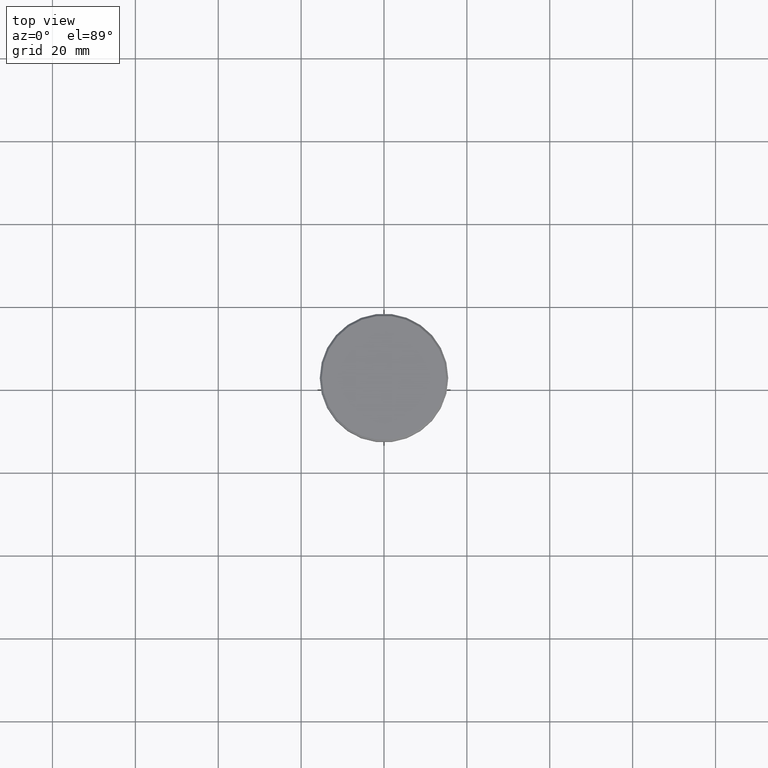
[diagram: clean part render]
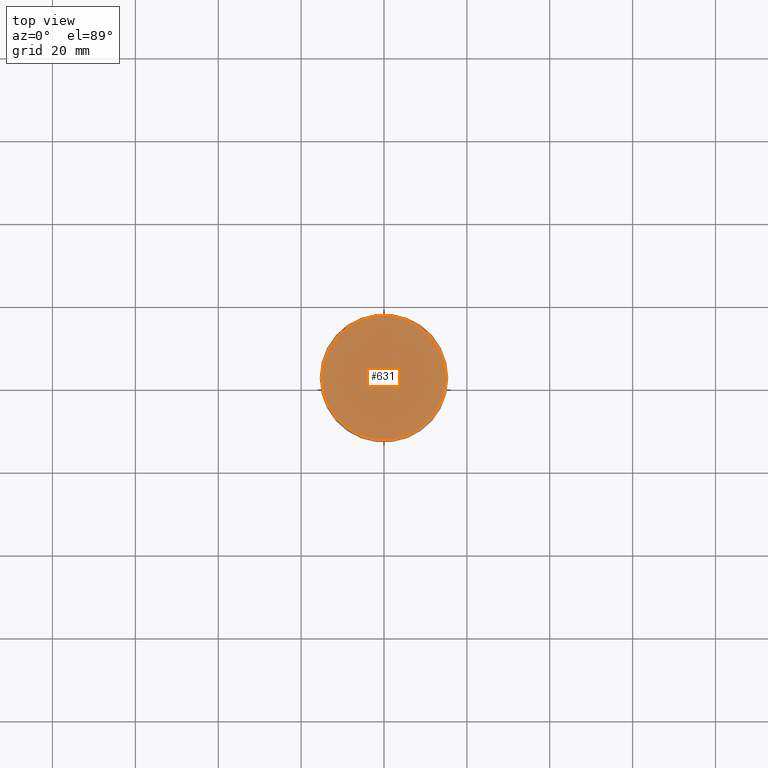
[diagram: same view with one face highlighted and labeled with its STEP entity id]
A machine part, top view. The second image highlights one B-rep face of the part: STEP entity #631.
In plain terms, the highlighted planar face has unit normal (0, -0, 1).
Its self-contained STEP definition (entity closure, byte-faithful):
#145 = FACE_OUTER_BOUND ( 'NONE', #984, .T. ) ;
#218 = CARTESIAN_POINT ( 'NONE',  ( 0.000000000000000000, 0.000000000000000000, 0.000000000000000000 ) ) ;
#279 = VERTEX_POINT ( 'NONE', #816 ) ;
#316 = DIRECTION ( 'NONE',  ( -0.000000000000000000, -0.000000000000000000, 1.000000000000000000 ) ) ;
#341 = DIRECTION ( 'NONE',  ( 0.000000000000000000, -0.000000000000000000, 1.000000000000000000 ) ) ;
#489 = AXIS2_PLACEMENT_3D ( 'NONE', #218, #316, #691 ) ;
#496 = EDGE_CURVE ( 'NONE', #279, #503, #873, .T. ) ;
#498 = DIRECTION ( 'NONE',  ( 1.000000000000000000, 0.000000000000000000, 0.000000000000000000 ) ) ;
#503 = VERTEX_POINT ( 'NONE', #1050 ) ;
#541 = ORIENTED_EDGE ( 'NONE', *, *, #496, .T. ) ;
#547 = AXIS2_PLACEMENT_3D ( 'NONE', #1161, #341, #903 ) ;
#631 = ADVANCED_FACE ( 'NONE', ( #145 ), #995, .T. ) ;
#639 = AXIS2_PLACEMENT_3D ( 'NONE', #1056, #880, #498 ) ;
#691 = DIRECTION ( 'NONE',  ( 1.000000000000000000, 0.000000000000000000, 0.000000000000000000 ) ) ;
#816 = CARTESIAN_POINT ( 'NONE',  ( 14.99999999999998579, 1.867586368699712587E-15, 0.000000000000000000 ) ) ;
#873 = CIRCLE ( 'NONE', #489, 14.99999999999998579 ) ;
#875 = EDGE_CURVE ( 'NONE', #503, #279, #1036, .T. ) ;
#880 = DIRECTION ( 'NONE',  ( -0.000000000000000000, -0.000000000000000000, 1.000000000000000000 ) ) ;
#903 = DIRECTION ( 'NONE',  ( 1.000000000000000000, 0.000000000000000000, 0.000000000000000000 ) ) ;
#984 = EDGE_LOOP ( 'NONE', ( #986, #541 ) ) ;
#986 = ORIENTED_EDGE ( 'NONE', *, *, #875, .T. ) ;
#995 = PLANE ( 'NONE',  #547 ) ;
#1036 = CIRCLE ( 'NONE', #639, 14.99999999999998579 ) ;
#1050 = CARTESIAN_POINT ( 'NONE',  ( -14.99999999999998579, 0.000000000000000000, 0.000000000000000000 ) ) ;
#1056 = CARTESIAN_POINT ( 'NONE',  ( 0.000000000000000000, 0.000000000000000000, 0.000000000000000000 ) ) ;
#1161 = CARTESIAN_POINT ( 'NONE',  ( 0.000000000000000000, 0.000000000000000000, 0.000000000000000000 ) ) ;